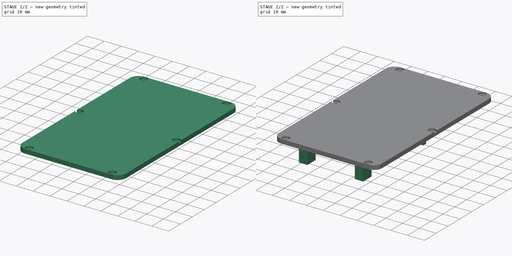
[diagram: build sequence overview — one tinted view per stage of 2, left to right]
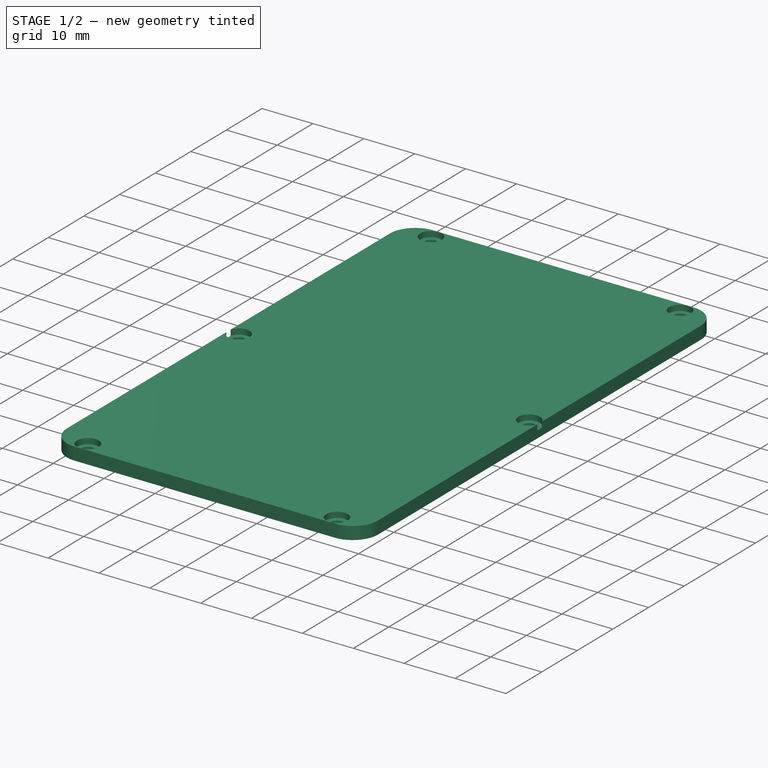
[diagram: stage 1 of 2 — iso view after this stage's code; geometry added in this stage tinted green]
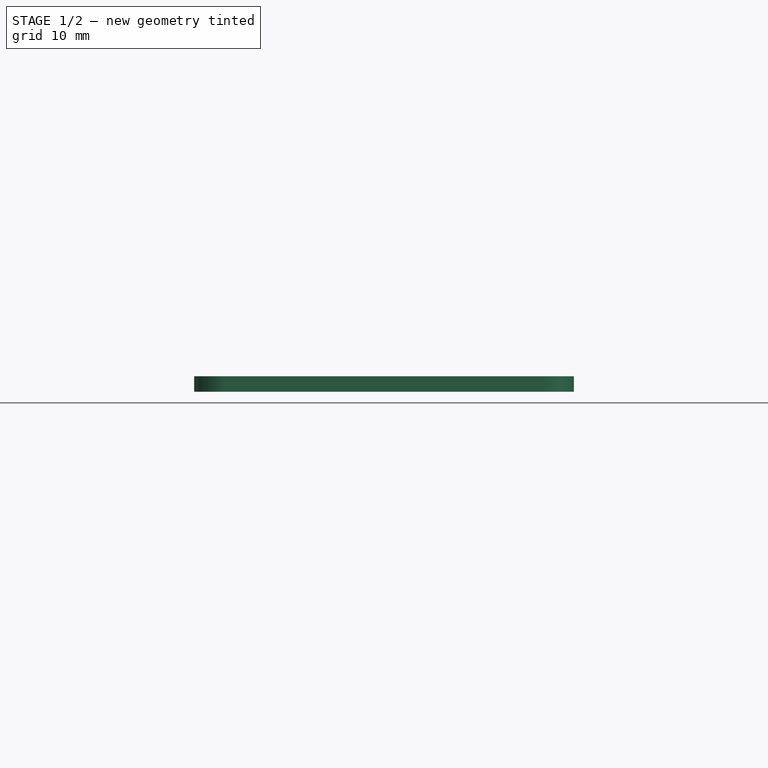
[diagram: stage 1 of 2 — front view after this stage's code; geometry added in this stage tinted green]
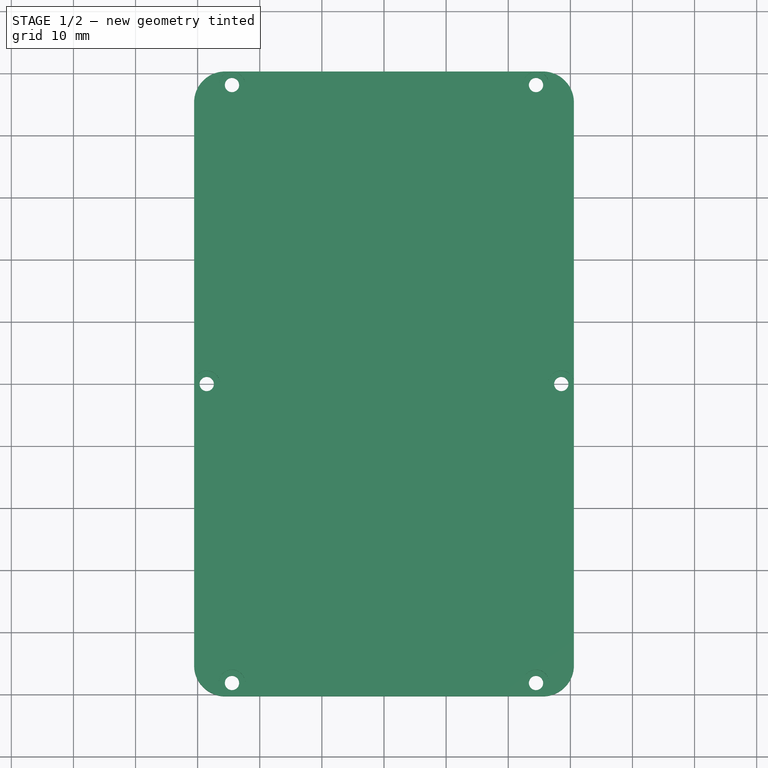
[diagram: stage 1 of 2 — top view after this stage's code; geometry added in this stage tinted green]
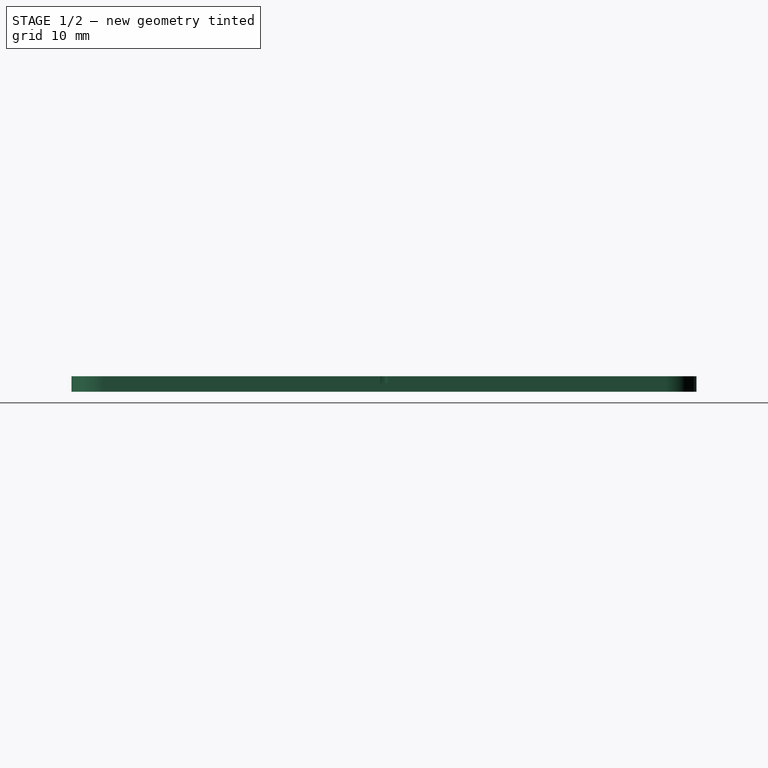
[diagram: stage 1 of 2 — right view after this stage's code; geometry added in this stage tinted green]
FCSTD DOCUMENT  (FreeCAD 0.20R29410 (Git))
Label: cover
License: All rights reserved
LicenseURL: http://en.wikipedia.org/wiki/All_rights_reserved
objects: Sketcher::SketchObject×3, PartDesign::Pad×2, PartDesign::Pocket×1, App::Link×1, PartDesign::Body×1
note: 10 computed .brp shape members not serialized (recipe doc carries the construction recipe); baked Part::Feature solids carry a one-line shape summary decoded from their .brp

FEATURE [Sketcher::SketchObject] Sketch008
  FullyConstrained = true
  MapMode = 5
  Placement = pos=(0,0,13.5) rot=(0,0,1;0rad)
  sketch-geometry (14):
    g0: LineSegment StartX=-30.575 StartY=45.3 StartZ=0 EndX=-30.575 EndY=-45.3 EndZ=0
    g1: LineSegment StartX=30.575 StartY=-45.3 StartZ=0 EndX=30.575 EndY=45.3 EndZ=0
    g2: ArcOfCircle CenterX=25.575 CenterY=45.3 CenterZ=0 NormalX=0 NormalY=0 NormalZ=1 AngleXU=0 Radius=5 StartAngle=-2.691e-13 EndAngle=1.5708
    g3: ArcOfCircle CenterX=-25.575 CenterY=45.3 CenterZ=0 NormalX=0 NormalY=0 NormalZ=1 AngleXU=0 Radius=5 StartAngle=1.5708 EndAngle=3.14159
    g4: ArcOfCircle CenterX=-25.575 CenterY=-45.3 CenterZ=0 NormalX=0 NormalY=0 NormalZ=1 AngleXU=0 Radius=5 StartAngle=3.14159 EndAngle=4.71239
    g5: ArcOfCircle CenterX=25.575 CenterY=-45.3 CenterZ=0 NormalX=0 NormalY=0 NormalZ=1 AngleXU=0 Radius=5 StartAngle=4.71239 EndAngle=6.28319
    g6: LineSegment StartX=-25.575 StartY=50.3 StartZ=0 EndX=25.575 EndY=50.3 EndZ=0
    g7: LineSegment StartX=-25.575 StartY=-50.3 StartZ=0 EndX=25.575 EndY=-50.3 EndZ=0
    g8: Circle CenterX=24.475 CenterY=48.14 CenterZ=0 NormalX=0 NormalY=0 NormalZ=1 AngleXU=0 Radius=1.15
    g9: Circle CenterX=-24.475 CenterY=48.14 CenterZ=0 NormalX=0 NormalY=0 NormalZ=1 AngleXU=0 Radius=1.15
    g10: Circle CenterX=-24.475 CenterY=-48.14 CenterZ=0 NormalX=0 NormalY=0 NormalZ=1 AngleXU=0 Radius=1.15
    g11: Circle CenterX=24.475 CenterY=-48.14 CenterZ=0 NormalX=0 NormalY=0 NormalZ=1 AngleXU=0 Radius=1.15
    g12: Circle CenterX=28.54 CenterY=0 CenterZ=0 NormalX=0 NormalY=0 NormalZ=1 AngleXU=0 Radius=1.15
    g13: Circle CenterX=-28.54 CenterY=0 CenterZ=0 NormalX=0 NormalY=0 NormalZ=1 AngleXU=0 Radius=1.15
  constraints (35):
    c: Diameter(g8) = 2.3
    c: Diameter(g9) = 2.3
    c: Diameter(g11) = 2.3
    c: Diameter(g10) = 2.3
    c: Diameter(g12) = 2.3
    c: Diameter(g13) = 2.3
    c: Radius(g2) = 5
    c: Equal(g2,g3)
    c: Equal(g3,g5)
    c: Equal(g5,g4)
    c: Equal(g7,g6)
    c: Equal(g1,g0)
    c: Tangent(g1,g5) = -1.5708
    c: Tangent(g5,g7) = -1.5708
    c: Tangent(g4,g7) = -1.5708
    c: Tangent(g0,g4) = -1.5708
    c: Tangent(g0,g3) = -1.5708
    c: Tangent(g3,g6) = 1.5708
    c: Tangent(g2,g6) = 1.5708
    c: Tangent(g1,g2) = -1.5708
    c: Symmetric(g3,g2,g-2)
    c: Symmetric(g1,g1,g-1)
    c: DistanceX(g8,g2) = 1.1
    c: DistanceY(g8,g2) = 2.16
    c: DistanceY(g9,g3) = 2.16
    c: DistanceX(g3,g9) = 1.1
    c: DistanceX(g4,g10) = 1.1
    c: DistanceX(g11,g5) = 1.1
    c: DistanceY(g5,g11) = 2.16
    c: DistanceY(g4,g10) = 2.16
    c: DistanceX(g13,g12) = 57.08
    c: Symmetric(g12,g13,g-2)
    c: PointOnObject(g12,g-1)
    c: DistanceX(g0,g1) = 61.15
    c: DistanceY(g5,g2) = 100.6
FEATURE [PartDesign::Pad] Pad003
  Direction = (0,0,1)
  Length = 2.5
  Length2 = 10
  Placement = pos=(0,0,13.5) rot=(0,0,1;0rad)
  Profile = -> Sketch008
  ReferenceAxis = -> Sketch008 [N_Axis]
  Type = 0
FEATURE [Sketcher::SketchObject] Sketch
  ExternalGeometry = -> [Pad003]
  FullyConstrained = true
  MapMode = 5
  Placement = pos=(0,0,16) rot=(0,0,1;0rad)
  Support = -> [Pad003]
  sketch-geometry (6):
    g0: Circle CenterX=-24.475 CenterY=-48.14 CenterZ=0 NormalX=0 NormalY=0 NormalZ=1 AngleXU=0 Radius=2.125
    g1: Circle CenterX=24.475 CenterY=-48.14 CenterZ=0 NormalX=0 NormalY=0 NormalZ=1 AngleXU=0 Radius=2.125
    g2: Circle CenterX=-24.475 CenterY=48.14 CenterZ=0 NormalX=0 NormalY=0 NormalZ=1 AngleXU=0 Radius=2.125
    g3: Circle CenterX=24.475 CenterY=48.14 CenterZ=0 NormalX=0 NormalY=0 NormalZ=1 AngleXU=0 Radius=2.125
    g4: Circle CenterX=28.54 CenterY=0 CenterZ=0 NormalX=0 NormalY=0 NormalZ=1 AngleXU=0 Radius=2.125
    g5: Circle CenterX=-28.54 CenterY=0 CenterZ=0 NormalX=0 NormalY=0 NormalZ=1 AngleXU=0 Radius=2.125
  constraints (14):
    c: Coincident(g0,g-8)
    c: Coincident(g1,g-7)
    c: Diameter(g3) = 4.25
    c: Coincident(g2,g-4)
    c: Coincident(g3,g-3)
    c: Coincident(g4,g-6)
    c: Coincident(g5,g-5)
    c: Equal(g2,g5)
    c: Equal(g5,g0)
    c: Equal(g0,g1)
    c: Equal(g1,g4)
    c: Equal(g4,g3)
    c: DistanceX(g-12,g-11) = 61.15
    c: DistanceY(g-10,g-9) = 100.6
FEATURE [PartDesign::Pocket] Pocket
  BaseFeature = -> Pad003
  Direction = (0,0,-1)
  Length = 1.1
  Length2 = 5
  Placement = pos=(0,0,13.5) rot=(0,0,1;0rad)
  Profile = -> Sketch
  ReferenceAxis = -> Sketch [N_Axis]
  Type = 0
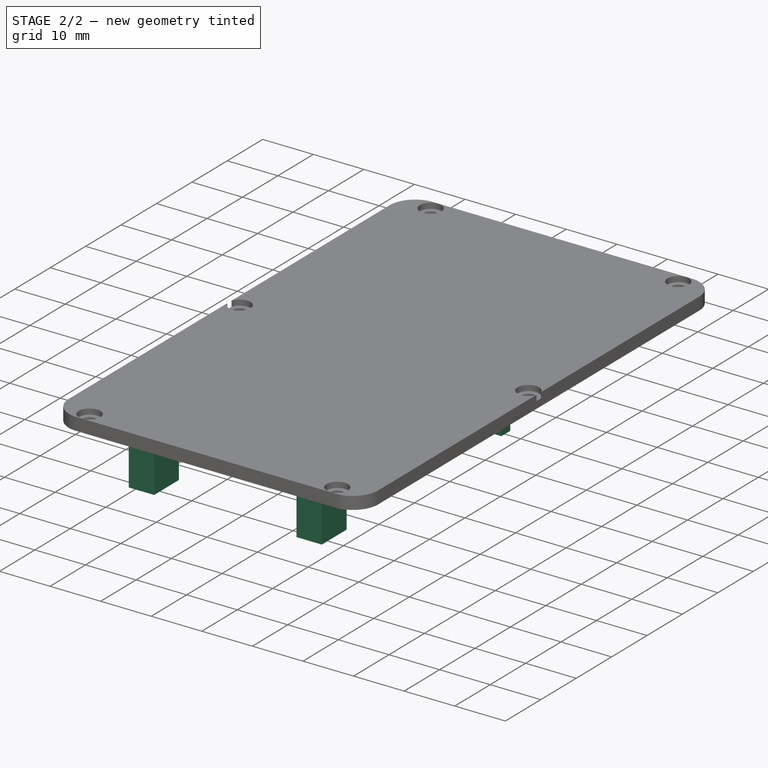
[diagram: stage 2 of 2 — iso view after this stage's code; geometry added in this stage tinted green]
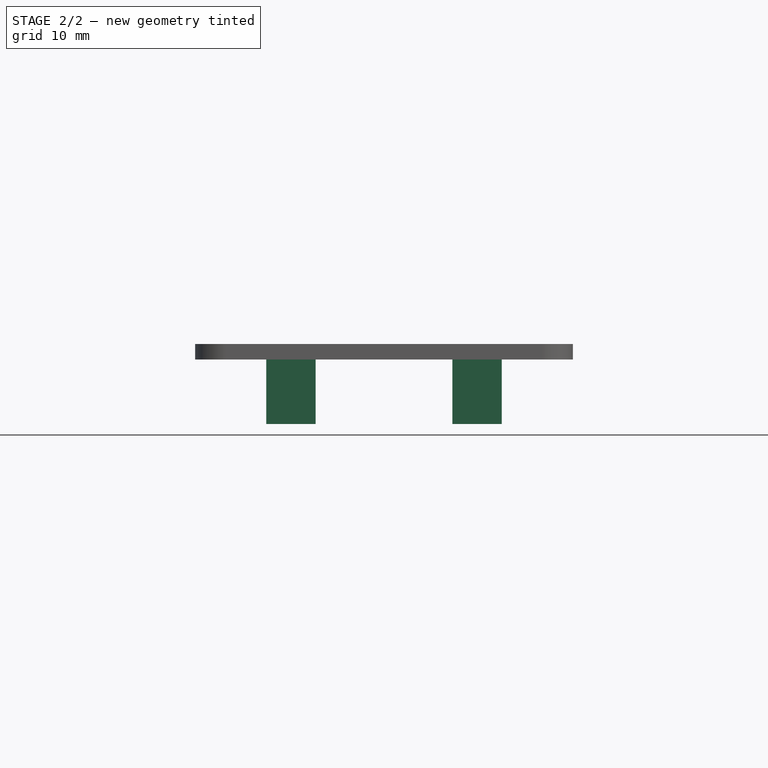
[diagram: stage 2 of 2 — front view after this stage's code; geometry added in this stage tinted green]
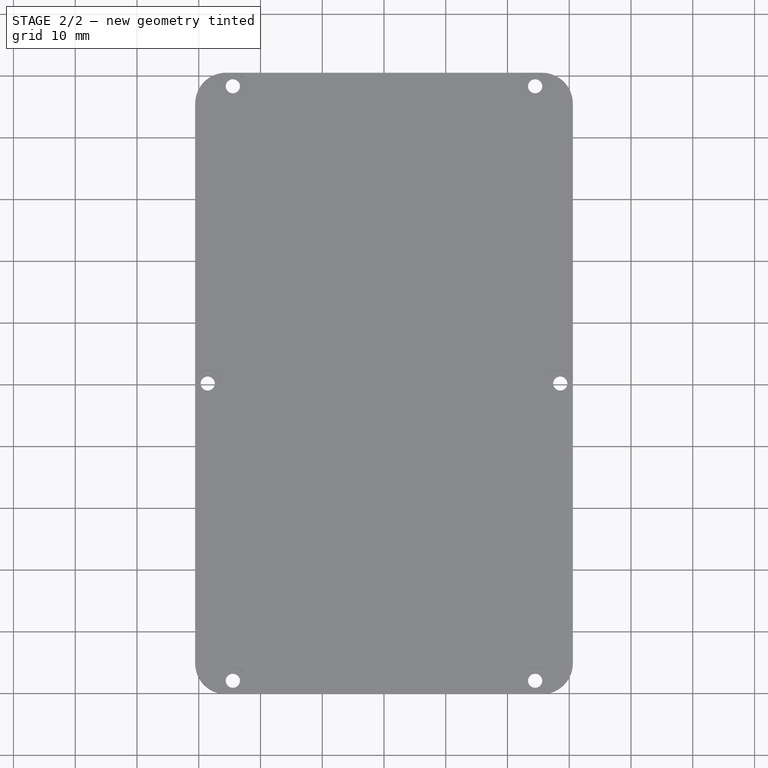
[diagram: stage 2 of 2 — top view after this stage's code; geometry added in this stage tinted green]
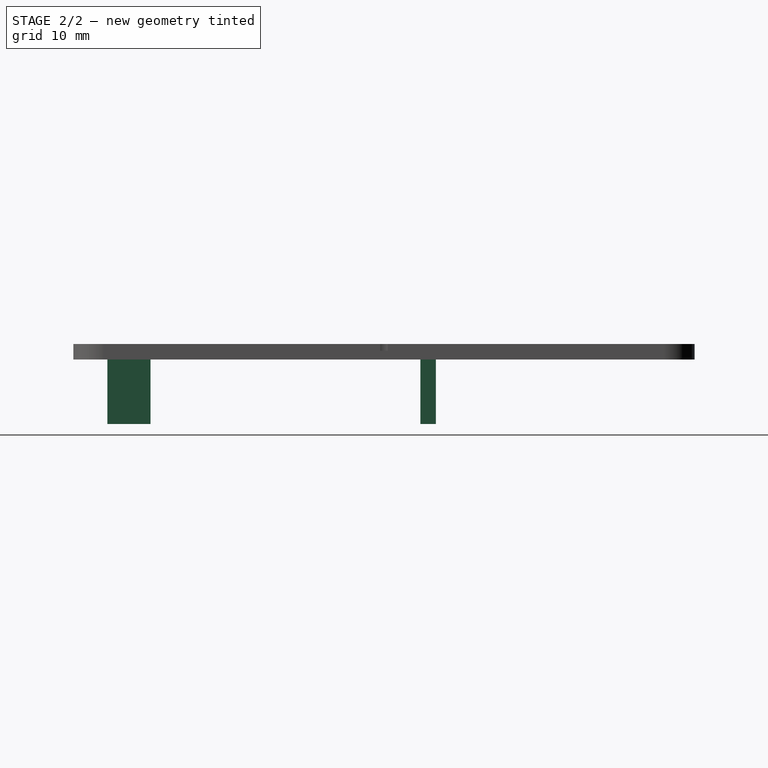
[diagram: stage 2 of 2 — right view after this stage's code; geometry added in this stage tinted green]
FEATURE [App::Link] Link  label="cover001"
  LinkedObject = -> Body
FEATURE [Sketcher::SketchObject] Sketch009
  ExternalGeometry = -> [Pocket]
  FullyConstrained = true
  MapMode = 5
  Placement = pos=(0,0,13.5) rot=(1,0,0;3.14159rad)
  Support = -> [Pocket]
  sketch-geometry (16):
    g0: LineSegment StartX=14.075 StartY=44.8 StartZ=0 EndX=19.075 EndY=44.8 EndZ=0
    g1: LineSegment StartX=19.075 StartY=44.8 StartZ=0 EndX=19.075 EndY=37.8 EndZ=0
    g2: LineSegment StartX=19.075 StartY=37.8 StartZ=0 EndX=14.075 EndY=37.8 EndZ=0
    g3: LineSegment StartX=14.075 StartY=37.8 StartZ=0 EndX=14.075 EndY=44.8 EndZ=0
    g4: LineSegment StartX=-19.075 StartY=44.8 StartZ=0 EndX=-14.075 EndY=44.8 EndZ=0
    g5: LineSegment StartX=-14.075 StartY=44.8 StartZ=0 EndX=-14.075 EndY=37.8 EndZ=0
    g6: LineSegment StartX=-14.075 StartY=37.8 StartZ=0 EndX=-19.075 EndY=37.8 EndZ=0
    g7: LineSegment StartX=-19.075 StartY=37.8 StartZ=0 EndX=-19.075 EndY=44.8 EndZ=0
    g8: LineSegment StartX=11.075 StartY=-8.4 StartZ=0 EndX=19.075 EndY=-8.4 EndZ=0
    g9: LineSegment StartX=19.075 StartY=-8.4 StartZ=0 EndX=19.075 EndY=-5.9 EndZ=0
    g10: LineSegment StartX=19.075 StartY=-5.9 StartZ=0 EndX=11.075 EndY=-5.9 EndZ=0
    g11: LineSegment StartX=11.075 StartY=-5.9 StartZ=0 EndX=11.075 EndY=-8.4 EndZ=0
    g12: LineSegment StartX=-11.075 StartY=-8.4 StartZ=0 EndX=-19.075 EndY=-8.4 EndZ=0
    g13: LineSegment StartX=-19.075 StartY=-8.4 StartZ=0 EndX=-19.075 EndY=-5.9 EndZ=0
    g14: LineSegment StartX=-19.075 StartY=-5.9 StartZ=0 EndX=-11.075 EndY=-5.9 EndZ=0
    g15: LineSegment StartX=-11.075 StartY=-5.9 StartZ=0 EndX=-11.075 EndY=-8.4 EndZ=0
  constraints (48):
    c: Coincident(g0,g1)
    c: Coincident(g1,g2)
    c: Coincident(g2,g3)
    c: Coincident(g3,g0)
    c: Horizontal(g0)
    c: Horizontal(g2)
    c: Vertical(g1)
    c: Vertical(g3)
    c: DistanceX(g0,g-3) = 11.5
    c: DistanceY(g0,g-5) = 5.5
    c: Distance(g1) = 7
    c: Distance(g0) = 5
    c: Coincident(g4,g5)
    c: Coincident(g5,g6)
    c: Coincident(g6,g7)
    c: Coincident(g7,g4)
    c: Horizontal(g4)
    c: Horizontal(g6)
    c: Vertical(g5)
    c: Vertical(g7)
    c: Distance(g5) = 7
    c: Distance(g4) = 5
    c: DistanceX(g-4,g4) = 11.5
    c: DistanceY(g4,g-5) = 5.5
    c: Coincident(g8,g9)
    c: Coincident(g9,g10)
    c: Coincident(g10,g11)
    c: Coincident(g11,g8)
    c: Horizontal(g8)
    c: Horizontal(g10)
    c: Vertical(g9)
    c: Vertical(g11)
    c: Distance(g9) = 2.5
    c: DistanceX(g10,g10) = 8
    c: DistanceX(g8,g-3) = 11.5
    c: DistanceY(g-6,g9) = 44.4
    c: Coincident(g12,g13)
    c: Coincident(g13,g14)
    c: Coincident(g14,g15)
    c: Coincident(g15,g12)
    c: Horizontal(g12)
    c: Horizontal(g14)
    c: Vertical(g13)
    c: Vertical(g15)
    c: DistanceY(g-6,g13) = 44.4
    c: DistanceX(g-4,g13) = 11.5
    c: Equal(g14,g10)
    c: Equal(g11,g15)
FEATURE [PartDesign::Pad] Pad
  BaseFeature = -> Pocket
  Direction = (0,0,-1)
  Length = 10.45
  Length2 = 10
  Placement = pos=(0,0,13.5) rot=(0,0,1;0rad)
  Profile = -> Sketch009
  ReferenceAxis = -> Sketch009 [N_Axis]
  Type = 0
FEATURE [PartDesign::Body] Body  label="cover"
  Group = -> [Sketch008,Pad003,Sketch,Pocket,Sketch009,Pad]
  Origin = -> Origin
  Tip = -> Pad
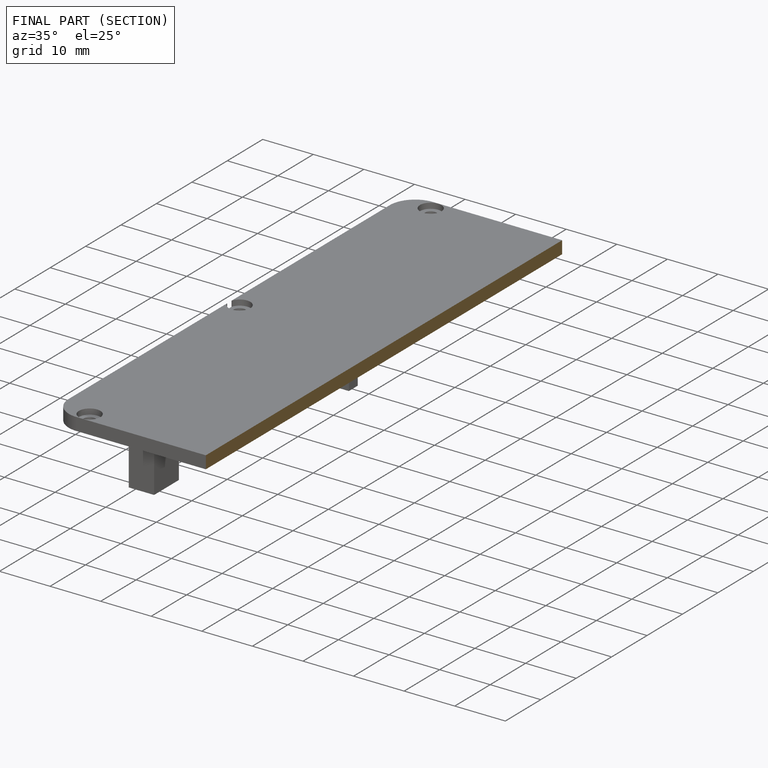
[diagram: finished part — half-section view (interior)]
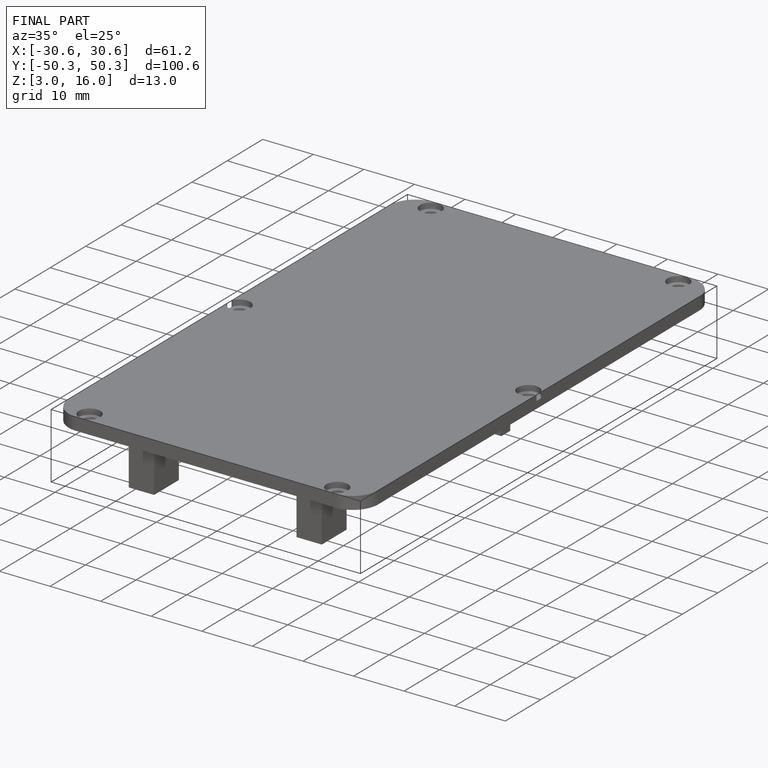
[diagram: finished part — iso view with bounding-box wireframe]
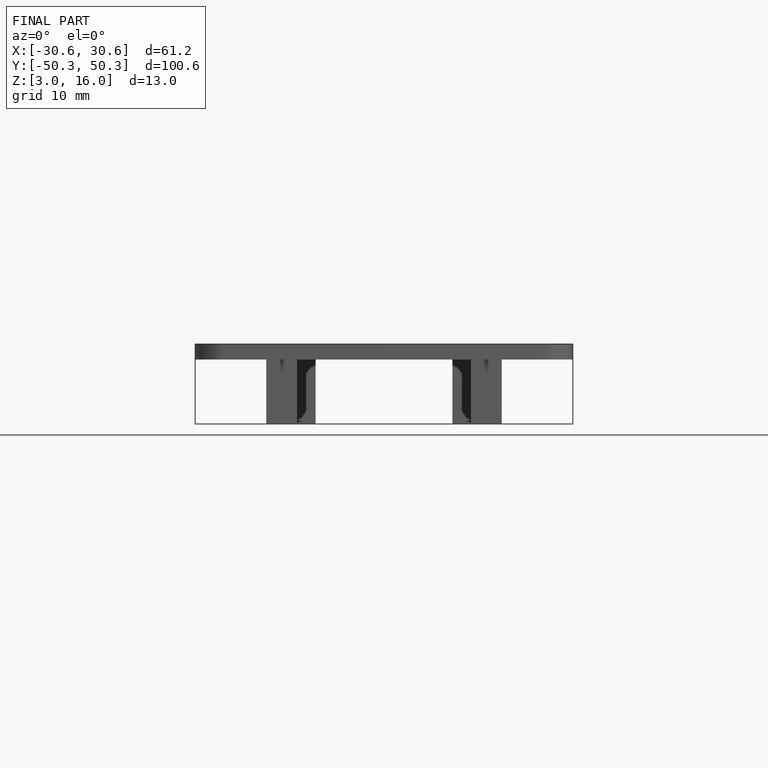
[diagram: finished part — front view with bounding-box wireframe]
